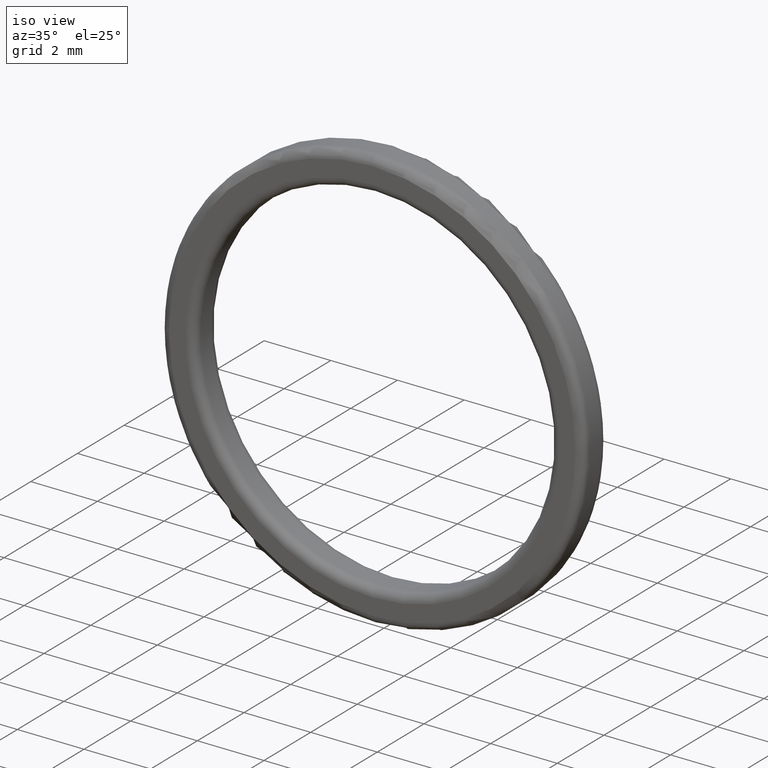
[diagram: clean part render]
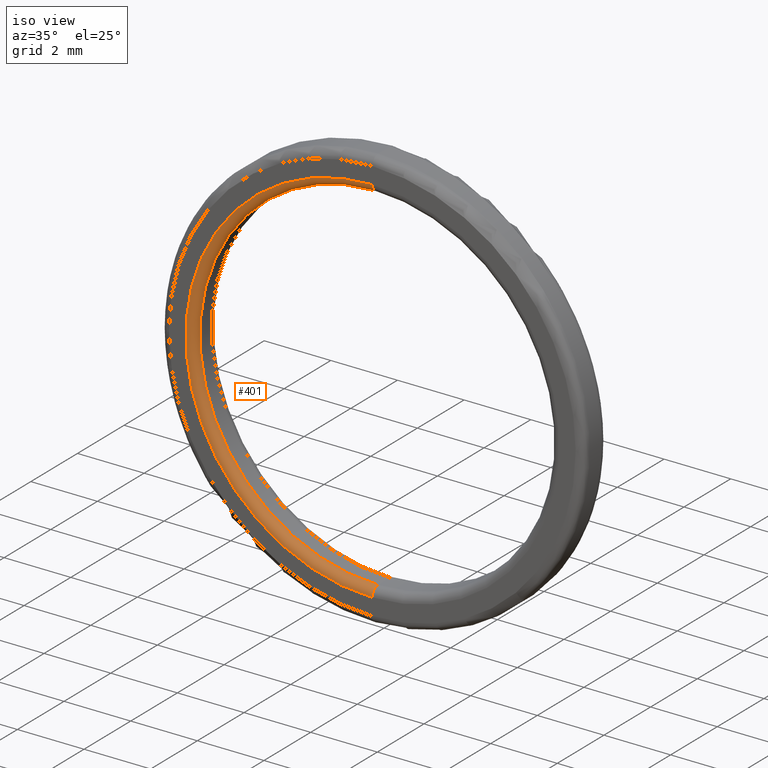
[diagram: same view with one face highlighted and labeled with its STEP entity id]
A machine part, iso view. The second image highlights one B-rep face of the part: STEP entity #401.
In plain terms, the highlighted toroidal blend (fillet) surface has major radius 5.6 mm and minor (blend) radius 0.25 mm.
Its self-contained STEP definition (entity closure, byte-faithful):
#1 = EDGE_CURVE ( 'NONE', #338, #386, #188, .T. ) ;
#39 = AXIS2_PLACEMENT_3D ( 'NONE', #430, #195, #433 ) ;
#45 = DIRECTION ( 'NONE',  ( -1.000000000000000000, 0.0000000000000000000, 0.0000000000000000000 ) ) ;
#53 = AXIS2_PLACEMENT_3D ( 'NONE', #186, #45, #77 ) ;
#64 = ORIENTED_EDGE ( 'NONE', *, *, #1, .F. ) ;
#69 = EDGE_CURVE ( 'NONE', #413, #386, #422, .T. ) ;
#77 = DIRECTION ( 'NONE',  ( 0.0000000000000000000, 0.0000000000000000000, 1.000000000000000000 ) ) ;
#114 = AXIS2_PLACEMENT_3D ( 'NONE', #117, #453, #424 ) ;
#117 = CARTESIAN_POINT ( 'NONE',  ( 0.0000000000000000000, -0.5000000000000011102, 0.0000000000000000000 ) ) ;
#143 = DIRECTION ( 'NONE',  ( 0.0000000000000000000, -1.000000000000000000, 0.0000000000000000000 ) ) ;
#154 = AXIS2_PLACEMENT_3D ( 'NONE', #365, #166, #403 ) ;
#166 = DIRECTION ( 'NONE',  ( -0.0000000000000000000, 1.000000000000000000, -0.0000000000000000000 ) ) ;
#186 = CARTESIAN_POINT ( 'NONE',  ( 0.0000000000000000000, -0.2500000000000011102, 5.599999999999994316 ) ) ;
#188 = CIRCLE ( 'NONE', #114, 5.599999999999994316 ) ;
#190 = CARTESIAN_POINT ( 'NONE',  ( 6.551860375438331807E-16, -0.2500000000000011102, -5.349999999999993427 ) ) ;
#195 = DIRECTION ( 'NONE',  ( 1.000000000000000000, 0.0000000000000000000, 1.224646799147353207E-16 ) ) ;
#196 = CARTESIAN_POINT ( 'NONE',  ( 6.858022075225169677E-16, -0.5000000000000011102, -5.599999999999994316 ) ) ;
#200 = CARTESIAN_POINT ( 'NONE',  ( 0.0000000000000000000, -0.2500000000000011102, 0.0000000000000000000 ) ) ;
#202 = EDGE_LOOP ( 'NONE', ( #373, #409, #248, #64 ) ) ;
#228 = AXIS2_PLACEMENT_3D ( 'NONE', #200, #143, #406 ) ;
#231 = VERTEX_POINT ( 'NONE', #190 ) ;
#241 = CARTESIAN_POINT ( 'NONE',  ( 0.0000000000000000000, -0.2500000000000011102, 5.349999999999993427 ) ) ;
#248 = ORIENTED_EDGE ( 'NONE', *, *, #69, .T. ) ;
#250 = TOROIDAL_SURFACE ( 'NONE', #154, 5.599999999999994316, 0.2500000000000000000 ) ;
#251 = EDGE_CURVE ( 'NONE', #231, #338, #389, .T. ) ;
#318 = CIRCLE ( 'NONE', #228, 5.349999999999993427 ) ;
#338 = VERTEX_POINT ( 'NONE', #196 ) ;
#363 = CARTESIAN_POINT ( 'NONE',  ( 0.0000000000000000000, -0.5000000000000011102, 5.599999999999994316 ) ) ;
#365 = CARTESIAN_POINT ( 'NONE',  ( 0.0000000000000000000, -0.2500000000000011102, 0.0000000000000000000 ) ) ;
#371 = EDGE_CURVE ( 'NONE', #413, #231, #318, .T. ) ;
#373 = ORIENTED_EDGE ( 'NONE', *, *, #251, .F. ) ;
#386 = VERTEX_POINT ( 'NONE', #363 ) ;
#389 = CIRCLE ( 'NONE', #39, 0.2500000000000002220 ) ;
#401 = ADVANCED_FACE ( 'NONE', ( #405 ), #250, .T. ) ;
#403 = DIRECTION ( 'NONE',  ( 0.0000000000000000000, 0.0000000000000000000, 1.000000000000000000 ) ) ;
#405 = FACE_OUTER_BOUND ( 'NONE', #202, .T. ) ;
#406 = DIRECTION ( 'NONE',  ( 0.0000000000000000000, 0.0000000000000000000, 1.000000000000000000 ) ) ;
#409 = ORIENTED_EDGE ( 'NONE', *, *, #371, .F. ) ;
#413 = VERTEX_POINT ( 'NONE', #241 ) ;
#422 = CIRCLE ( 'NONE', #53, 0.2500000000000002220 ) ;
#424 = DIRECTION ( 'NONE',  ( 0.0000000000000000000, 0.0000000000000000000, 1.000000000000000000 ) ) ;
#430 = CARTESIAN_POINT ( 'NONE',  ( 6.858022075225169677E-16, -0.2500000000000011102, -5.599999999999994316 ) ) ;
#433 = DIRECTION ( 'NONE',  ( 1.224646799147353454E-16, 0.0000000000000000000, -1.000000000000000000 ) ) ;
#453 = DIRECTION ( 'NONE',  ( -0.0000000000000000000, 1.000000000000000000, -0.0000000000000000000 ) ) ;